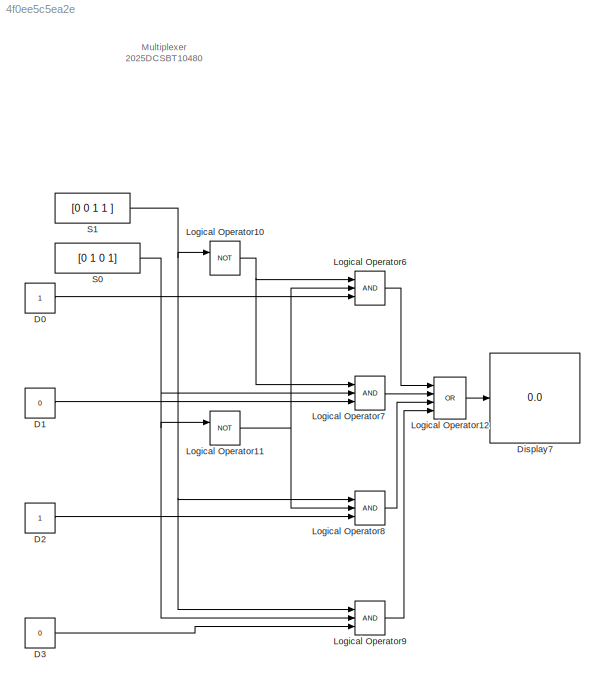
MODEL slx_4f0ee5c5ea2e
KIND model
CONFIG AbsTol = auto
CONFIG EnableMultiTasking = off
CONFIG FixedStep = auto
CONFIG MaxStep = auto
CONFIG MinStep = auto
CONFIG RelTol = 1e-3
CONFIG SampleTimeConstraint = Unconstrained
CONFIG SolverName = VariableStepAuto
CONFIG StartTime = 0.0
CONFIG StopTime = 10.0
BLOCK [Constant] D0
BLOCK [Constant] D1
  Value = 0
BLOCK [Constant] D2
BLOCK [Constant] D3
  Value = 0
BLOCK [Display] Display7
  Decimation = 1
BLOCK [Logic] Logical Operator10
  AllPortsSameDT = off
  IconShape = distinctive
  Operator = NOT
  OutDataTypeStr = boolean
BLOCK [Logic] Logical Operator11
  AllPortsSameDT = off
  IconShape = distinctive
  Operator = NOT
  OutDataTypeStr = boolean
BLOCK [Logic] Logical Operator12
  AllPortsSameDT = off
  IconShape = distinctive
  Inputs = 4
  Operator = OR
  OutDataTypeStr = boolean
BLOCK [Logic] Logical Operator6
  AllPortsSameDT = off
  IconShape = distinctive
  Inputs = 3
  OutDataTypeStr = boolean
BLOCK [Logic] Logical Operator7
  AllPortsSameDT = off
  IconShape = distinctive
  Inputs = 3
  OutDataTypeStr = boolean
BLOCK [Logic] Logical Operator8
  AllPortsSameDT = off
  IconShape = distinctive
  Inputs = 3
  OutDataTypeStr = boolean
BLOCK [Logic] Logical Operator9
  AllPortsSameDT = off
  IconShape = distinctive
  Inputs = 3
  OutDataTypeStr = boolean
BLOCK [Constant] S0
  Value = [0 1 0 1]
BLOCK [Constant] S1
  Value = [0 0 1 1 ]
ANNOTATION (root): Multiplexer 2025DCSBT10480
LINE D0:1 -> Logical Operator6:3
LINE D1:1 -> Logical Operator7:3
LINE D2:1 -> Logical Operator8:3
LINE D3:1 -> Logical Operator9:3
NET Logical Operator10:1 -> Logical Operator6:1, Logical Operator7:1
NET Logical Operator11:1 -> Logical Operator6:2, Logical Operator8:2
LINE Logical Operator12:1 -> Display7:1
LINE Logical Operator6:1 -> Logical Operator12:1
LINE Logical Operator7:1 -> Logical Operator12:2
LINE Logical Operator8:1 -> Logical Operator12:3
LINE Logical Operator9:1 -> Logical Operator12:4
NET S0:1 -> Logical Operator11:1, Logical Operator7:2, Logical Operator9:2
NET S1:1 -> Logical Operator10:1, Logical Operator8:1, Logical Operator9:1
note: NET lines group one-source signal fan-out (src -> all destinations, sorted); 1:1 wires keep LINE
